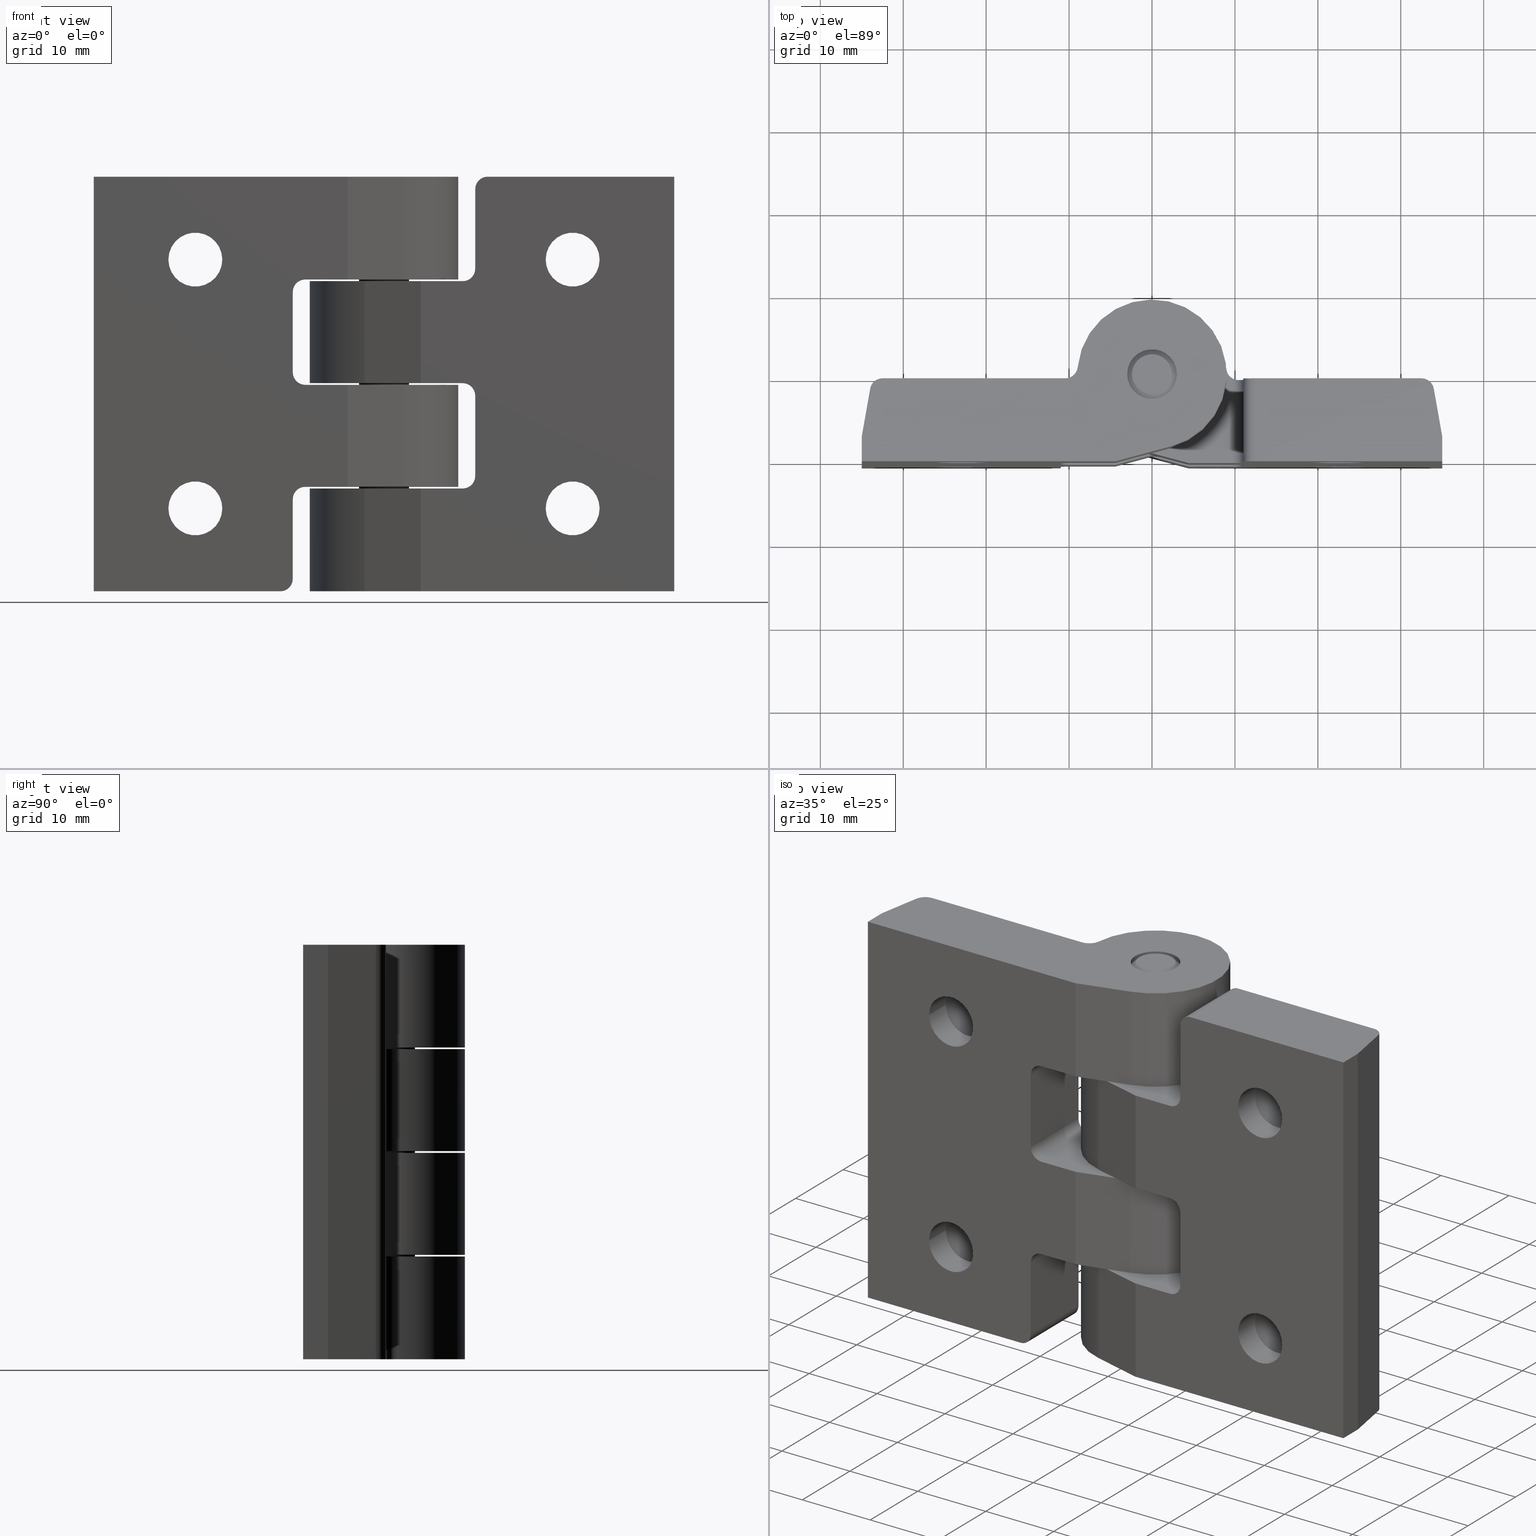
[diagram: canonical four-view strip — front | top / right | iso, engineering-drawing reading convention]
A machine part, canonical four-view strip (front | top / right | iso — engineering-drawing reading convention). The complete STEP part file that produces these views, byte-faithful:
ISO-10303-21;
HEADER;
/* Generated by software containing ST-Developer
 * from STEP Tools, Inc. (www.steptools.com) 
 */

FILE_DESCRIPTION(
/* description */ ('CERNIERA 69.5x50 NERA'),
/* implementation_level */ '2;1');

FILE_NAME(
/* name */ 
'Q:\\Catalogo\\2_Accessori Dierre\\Per Download Web e catalogo cartace
o\\CATALOGO ACCESSORI PER RIPARI\\PAGINA 66\\CCRYY0000020.stp',
/* time_stamp */ '2019-10-08T09:44:11+02:00',
/* author */ ('fzagni'),
/* organization */ (''),
/* preprocessor_version */ 'ST-DEVELOPER v17.2',
/* originating_system */ 'Autodesk Inventor 2019',
/* authorisation */ '');

FILE_SCHEMA (('AUTOMOTIVE_DESIGN { 1 0 10303 214 3 1 1 }'));
ENDSEC;

DATA;
#10=MECHANICAL_DESIGN_GEOMETRIC_PRESENTATION_REPRESENTATION('',(#29,#30),
#1245);
#11=ITEM_DEFINED_TRANSFORMATION($,$,#727,#804);
#12=ITEM_DEFINED_TRANSFORMATION($,$,#727,#805);
#13=ITEM_DEFINED_TRANSFORMATION($,$,#794,#806);
#14=(
REPRESENTATION_RELATIONSHIP($,$,#1260,#1259)
REPRESENTATION_RELATIONSHIP_WITH_TRANSFORMATION(#11)
SHAPE_REPRESENTATION_RELATIONSHIP()
);
#15=(
REPRESENTATION_RELATIONSHIP($,$,#1260,#1259)
REPRESENTATION_RELATIONSHIP_WITH_TRANSFORMATION(#12)
SHAPE_REPRESENTATION_RELATIONSHIP()
);
#16=(
REPRESENTATION_RELATIONSHIP($,$,#1261,#1259)
REPRESENTATION_RELATIONSHIP_WITH_TRANSFORMATION(#13)
SHAPE_REPRESENTATION_RELATIONSHIP()
);
#17=CONTEXT_DEPENDENT_SHAPE_REPRESENTATION(#14,#1256);
#18=CONTEXT_DEPENDENT_SHAPE_REPRESENTATION(#15,#1257);
#19=CONTEXT_DEPENDENT_SHAPE_REPRESENTATION(#16,#1258);
#20=NEXT_ASSEMBLY_USAGE_OCCURRENCE('440000013986:1','440000013986:1',
'440000013986:1',#1263,#1264,'440000013986:1');
#21=NEXT_ASSEMBLY_USAGE_OCCURRENCE('440000013986:2','440000013986:2',
'440000013986:2',#1263,#1264,'440000013986:2');
#22=NEXT_ASSEMBLY_USAGE_OCCURRENCE('440000013987:1','440000013987:1',
'440000013987:1',#1263,#1265,'440000013987:1');
#23=CONICAL_SURFACE('',#795,2.7,0.785398163397448);
#24=CONICAL_SURFACE('',#801,2.7,0.785398163397451);
#25=SHAPE_REPRESENTATION_RELATIONSHIP('SRR','None',#1260,#27);
#26=SHAPE_REPRESENTATION_RELATIONSHIP('SRR','None',#1261,#28);
#27=ADVANCED_BREP_SHAPE_REPRESENTATION('',(#31),#1243);
#28=ADVANCED_BREP_SHAPE_REPRESENTATION('',(#32),#1244);
#29=STYLED_ITEM('',(#690),#31);
#30=STYLED_ITEM('',(#691),#32);
#31=MANIFOLD_SOLID_BREP('Solid1',#665);
#32=MANIFOLD_SOLID_BREP('Solido1',#666);
#33=B_SPLINE_CURVE_WITH_KNOTS('',3,(#1087,#1088,#1089,#1090,#1091,#1092,
#1093,#1094,#1095,#1096),.UNSPECIFIED.,.F.,.F.,(4,2,2,2,4),(0.497925067169913,
0.511266978425628,0.546566432357156,0.581865886288683,0.605236241094576),
 .UNSPECIFIED.);
#34=B_SPLINE_CURVE_WITH_KNOTS('',3,(#1110,#1111,#1112,#1113,#1114,#1115,
#1116,#1117,#1118,#1119),.UNSPECIFIED.,.F.,.F.,(4,2,2,2,4),(0.13089062371033,
0.154260978516216,0.189560432447742,0.224859886379268,0.238201797634989),
 .UNSPECIFIED.);
#35=B_SPLINE_CURVE_WITH_KNOTS('',3,(#1123,#1124,#1125,#1126,#1127,#1128,
#1129,#1130,#1131,#1132),.UNSPECIFIED.,.F.,.F.,(4,2,2,2,4),(0.13089062371033,
0.154260978516216,0.189560432447742,0.224859886379268,0.238201797634988),
 .UNSPECIFIED.);
#36=LINE('',#1031,#84);
#37=LINE('',#1034,#85);
#38=LINE('',#1050,#86);
#39=LINE('',#1053,#87);
#40=LINE('',#1061,#88);
#41=LINE('',#1067,#89);
#42=LINE('',#1072,#90);
#43=LINE('',#1074,#91);
#44=LINE('',#1079,#92);
#45=LINE('',#1085,#93);
#46=LINE('',#1099,#94);
#47=LINE('',#1102,#95);
#48=LINE('',#1104,#96);
#49=LINE('',#1105,#97);
#50=LINE('',#1134,#98);
#51=LINE('',#1138,#99);
#52=LINE('',#1142,#100);
#53=LINE('',#1144,#101);
#54=LINE('',#1154,#102);
#55=LINE('',#1155,#103);
#56=LINE('',#1158,#104);
#57=LINE('',#1160,#105);
#58=LINE('',#1161,#106);
#59=LINE('',#1166,#107);
#60=LINE('',#1170,#108);
#61=LINE('',#1172,#109);
#62=LINE('',#1173,#110);
#63=LINE('',#1176,#111);
#64=LINE('',#1180,#112);
#65=LINE('',#1184,#113);
#66=LINE('',#1186,#114);
#67=LINE('',#1187,#115);
#68=LINE('',#1188,#116);
#69=LINE('',#1191,#117);
#70=LINE('',#1193,#118);
#71=LINE('',#1196,#119);
#72=LINE('',#1199,#120);
#73=LINE('',#1201,#121);
#74=LINE('',#1202,#122);
#75=LINE('',#1206,#123);
#76=LINE('',#1208,#124);
#77=LINE('',#1209,#125);
#78=LINE('',#1211,#126);
#79=LINE('',#1213,#127);
#80=LINE('',#1216,#128);
#81=LINE('',#1223,#129);
#82=LINE('',#1228,#130);
#83=LINE('',#1233,#131);
#84=VECTOR('',#825,5.);
#85=VECTOR('',#828,3.25);
#86=VECTOR('',#847,5.);
#87=VECTOR('',#850,3.25);
#88=VECTOR('',#859,3.);
#89=VECTOR('',#866,3.);
#90=VECTOR('',#871,10.);
#91=VECTOR('',#872,10.);
#92=VECTOR('',#877,10.);
#93=VECTOR('',#882,10.);
#94=VECTOR('',#885,10.);
#95=VECTOR('',#888,10.);
#96=VECTOR('',#889,10.);
#97=VECTOR('',#890,10.);
#98=VECTOR('',#899,10.);
#99=VECTOR('',#902,10.);
#100=VECTOR('',#907,10.);
#101=VECTOR('',#908,10.);
#102=VECTOR('',#919,10.);
#103=VECTOR('',#920,10.);
#104=VECTOR('',#923,10.);
#105=VECTOR('',#924,10.);
#106=VECTOR('',#925,10.);
#107=VECTOR('',#930,10.);
#108=VECTOR('',#935,10.);
#109=VECTOR('',#936,10.);
#110=VECTOR('',#937,10.);
#111=VECTOR('',#940,10.);
#112=VECTOR('',#945,10.);
#113=VECTOR('',#950,10.);
#114=VECTOR('',#951,10.);
#115=VECTOR('',#952,10.);
#116=VECTOR('',#953,10.);
#117=VECTOR('',#956,10.);
#118=VECTOR('',#957,10.);
#119=VECTOR('',#960,10.);
#120=VECTOR('',#963,10.);
#121=VECTOR('',#964,10.);
#122=VECTOR('',#965,10.);
#123=VECTOR('',#970,10.);
#124=VECTOR('',#973,10.);
#125=VECTOR('',#974,10.);
#126=VECTOR('',#977,10.);
#127=VECTOR('',#980,10.);
#128=VECTOR('',#985,10.);
#129=VECTOR('',#994,2.7);
#130=VECTOR('',#1001,3.);
#131=VECTOR('',#1008,2.7);
#132=CYLINDRICAL_SURFACE('',#732,5.);
#133=CYLINDRICAL_SURFACE('',#735,3.25);
#134=CYLINDRICAL_SURFACE('',#742,5.);
#135=CYLINDRICAL_SURFACE('',#745,3.25);
#136=CYLINDRICAL_SURFACE('',#748,3.);
#137=CYLINDRICAL_SURFACE('',#751,3.);
#138=CYLINDRICAL_SURFACE('',#757,1.4999999999997);
#139=CYLINDRICAL_SURFACE('',#761,1.49999999999939);
#140=CYLINDRICAL_SURFACE('',#764,1.49999999999939);
#141=CYLINDRICAL_SURFACE('',#774,1.49999999999939);
#142=CYLINDRICAL_SURFACE('',#778,9.);
#143=CYLINDRICAL_SURFACE('',#780,1.49997000000001);
#144=CYLINDRICAL_SURFACE('',#786,1.49996999999934);
#145=CYLINDRICAL_SURFACE('',#789,1.49997000000001);
#146=CYLINDRICAL_SURFACE('',#790,9.);
#147=CYLINDRICAL_SURFACE('',#798,3.);
#148=FACE_BOUND('',#194,.T.);
#149=FACE_BOUND('',#198,.T.);
#150=FACE_BOUND('',#204,.T.);
#151=FACE_BOUND('',#210,.T.);
#152=FACE_BOUND('',#212,.T.);
#153=FACE_BOUND('',#219,.T.);
#154=FACE_BOUND('',#220,.T.);
#155=FACE_BOUND('',#225,.T.);
#156=FACE_BOUND('',#226,.T.);
#157=FACE_BOUND('',#232,.T.);
#158=FACE_OUTER_BOUND('',#193,.T.);
#159=FACE_OUTER_BOUND('',#195,.T.);
#160=FACE_OUTER_BOUND('',#196,.T.);
#161=FACE_OUTER_BOUND('',#197,.T.);
#162=FACE_OUTER_BOUND('',#199,.T.);
#163=FACE_OUTER_BOUND('',#200,.T.);
#164=FACE_OUTER_BOUND('',#201,.T.);
#165=FACE_OUTER_BOUND('',#202,.T.);
#166=FACE_OUTER_BOUND('',#203,.T.);
#167=FACE_OUTER_BOUND('',#205,.T.);
#168=FACE_OUTER_BOUND('',#206,.T.);
#169=FACE_OUTER_BOUND('',#207,.T.);
#170=FACE_OUTER_BOUND('',#208,.T.);
#171=FACE_OUTER_BOUND('',#209,.T.);
#172=FACE_OUTER_BOUND('',#211,.T.);
#173=FACE_OUTER_BOUND('',#213,.T.);
#174=FACE_OUTER_BOUND('',#214,.T.);
#175=FACE_OUTER_BOUND('',#215,.T.);
#176=FACE_OUTER_BOUND('',#216,.T.);
#177=FACE_OUTER_BOUND('',#217,.T.);
#178=FACE_OUTER_BOUND('',#218,.T.);
#179=FACE_OUTER_BOUND('',#221,.T.);
#180=FACE_OUTER_BOUND('',#222,.T.);
#181=FACE_OUTER_BOUND('',#223,.T.);
#182=FACE_OUTER_BOUND('',#224,.T.);
#183=FACE_OUTER_BOUND('',#227,.T.);
#184=FACE_OUTER_BOUND('',#228,.T.);
#185=FACE_OUTER_BOUND('',#229,.T.);
#186=FACE_OUTER_BOUND('',#230,.T.);
#187=FACE_OUTER_BOUND('',#231,.T.);
#188=FACE_OUTER_BOUND('',#233,.T.);
#189=FACE_OUTER_BOUND('',#234,.T.);
#190=FACE_OUTER_BOUND('',#235,.T.);
#191=FACE_OUTER_BOUND('',#236,.T.);
#192=FACE_OUTER_BOUND('',#237,.T.);
#193=EDGE_LOOP('',(#431,#432));
#194=EDGE_LOOP('',(#433));
#195=EDGE_LOOP('',(#434,#435,#436,#437,#438,#439));
#196=EDGE_LOOP('',(#440,#441,#442,#443,#444));
#197=EDGE_LOOP('',(#445,#446));
#198=EDGE_LOOP('',(#447));
#199=EDGE_LOOP('',(#448,#449,#450,#451,#452,#453));
#200=EDGE_LOOP('',(#454,#455,#456,#457,#458));
#201=EDGE_LOOP('',(#459,#460,#461,#462));
#202=EDGE_LOOP('',(#463,#464,#465,#466));
#203=EDGE_LOOP('',(#467,#468,#469,#470,#471));
#204=EDGE_LOOP('',(#472));
#205=EDGE_LOOP('',(#473,#474,#475,#476,#477));
#206=EDGE_LOOP('',(#478,#479,#480,#481));
#207=EDGE_LOOP('',(#482,#483,#484,#485,#486));
#208=EDGE_LOOP('',(#487,#488,#489,#490,#491));
#209=EDGE_LOOP('',(#492,#493,#494,#495,#496));
#210=EDGE_LOOP('',(#497));
#211=EDGE_LOOP('',(#498,#499,#500,#501,#502));
#212=EDGE_LOOP('',(#503));
#213=EDGE_LOOP('',(#504,#505,#506,#507));
#214=EDGE_LOOP('',(#508,#509,#510,#511));
#215=EDGE_LOOP('',(#512,#513,#514,#515));
#216=EDGE_LOOP('',(#516,#517,#518,#519));
#217=EDGE_LOOP('',(#520,#521,#522,#523,#524));
#218=EDGE_LOOP('',(#525,#526,#527,#528,#529,#530,#531,#532,#533,#534,#535,
#536,#537,#538));
#219=EDGE_LOOP('',(#539,#540));
#220=EDGE_LOOP('',(#541,#542));
#221=EDGE_LOOP('',(#543,#544,#545,#546,#547,#548));
#222=EDGE_LOOP('',(#549,#550,#551,#552));
#223=EDGE_LOOP('',(#553,#554,#555,#556));
#224=EDGE_LOOP('',(#557,#558,#559,#560,#561,#562,#563,#564,#565,#566,#567));
#225=EDGE_LOOP('',(#568,#569));
#226=EDGE_LOOP('',(#570,#571));
#227=EDGE_LOOP('',(#572,#573,#574,#575,#576,#577));
#228=EDGE_LOOP('',(#578,#579,#580,#581));
#229=EDGE_LOOP('',(#582,#583,#584,#585));
#230=EDGE_LOOP('',(#586,#587,#588,#589));
#231=EDGE_LOOP('',(#590,#591,#592,#593,#594,#595,#596,#597));
#232=EDGE_LOOP('',(#598));
#233=EDGE_LOOP('',(#599,#600,#601,#602));
#234=EDGE_LOOP('',(#603,#604,#605,#606));
#235=EDGE_LOOP('',(#607));
#236=EDGE_LOOP('',(#608,#609,#610,#611));
#237=EDGE_LOOP('',(#612));
#238=CIRCLE('',#729,5.);
#239=CIRCLE('',#730,5.);
#240=CIRCLE('',#731,3.25);
#241=CIRCLE('',#733,5.);
#242=CIRCLE('',#734,5.);
#243=CIRCLE('',#736,3.25);
#244=CIRCLE('',#737,3.25);
#245=CIRCLE('',#739,5.);
#246=CIRCLE('',#740,5.);
#247=CIRCLE('',#741,3.25);
#248=CIRCLE('',#743,5.);
#249=CIRCLE('',#744,5.);
#250=CIRCLE('',#746,3.25);
#251=CIRCLE('',#747,3.25);
#252=CIRCLE('',#749,3.);
#253=CIRCLE('',#750,3.);
#254=CIRCLE('',#752,3.);
#255=CIRCLE('',#753,3.);
#256=CIRCLE('',#755,1.49997000000001);
#257=CIRCLE('',#756,9.);
#258=CIRCLE('',#758,1.4999999999997);
#259=CIRCLE('',#759,1.4999999999997);
#260=CIRCLE('',#762,1.49999999999939);
#261=CIRCLE('',#763,1.49999999999939);
#262=CIRCLE('',#765,1.49999999999939);
#263=CIRCLE('',#766,1.49999999999939);
#264=CIRCLE('',#768,9.);
#265=CIRCLE('',#769,1.49997000000001);
#266=CIRCLE('',#771,1.49997000000001);
#267=CIRCLE('',#772,9.);
#268=CIRCLE('',#775,1.49999999999939);
#269=CIRCLE('',#776,1.49999999999939);
#270=CIRCLE('',#779,9.);
#271=CIRCLE('',#781,1.49997000000001);
#272=CIRCLE('',#784,1.49996999999934);
#273=CIRCLE('',#787,1.49996999999934);
#274=CIRCLE('',#796,2.4);
#275=CIRCLE('',#797,3.);
#276=CIRCLE('',#799,3.);
#277=CIRCLE('',#802,2.4);
#278=VERTEX_POINT('',#1020);
#279=VERTEX_POINT('',#1021);
#280=VERTEX_POINT('',#1024);
#281=VERTEX_POINT('',#1027);
#282=VERTEX_POINT('',#1028);
#283=VERTEX_POINT('',#1033);
#284=VERTEX_POINT('',#1035);
#285=VERTEX_POINT('',#1039);
#286=VERTEX_POINT('',#1040);
#287=VERTEX_POINT('',#1043);
#288=VERTEX_POINT('',#1046);
#289=VERTEX_POINT('',#1047);
#290=VERTEX_POINT('',#1052);
#291=VERTEX_POINT('',#1054);
#292=VERTEX_POINT('',#1058);
#293=VERTEX_POINT('',#1060);
#294=VERTEX_POINT('',#1064);
#295=VERTEX_POINT('',#1066);
#296=VERTEX_POINT('',#1070);
#297=VERTEX_POINT('',#1071);
#298=VERTEX_POINT('',#1073);
#299=VERTEX_POINT('',#1075);
#300=VERTEX_POINT('',#1077);
#301=VERTEX_POINT('',#1081);
#302=VERTEX_POINT('',#1082);
#303=VERTEX_POINT('',#1084);
#304=VERTEX_POINT('',#1086);
#305=VERTEX_POINT('',#1097);
#306=VERTEX_POINT('',#1101);
#307=VERTEX_POINT('',#1103);
#308=VERTEX_POINT('',#1108);
#309=VERTEX_POINT('',#1121);
#310=VERTEX_POINT('',#1122);
#311=VERTEX_POINT('',#1133);
#312=VERTEX_POINT('',#1135);
#313=VERTEX_POINT('',#1137);
#314=VERTEX_POINT('',#1141);
#315=VERTEX_POINT('',#1143);
#316=VERTEX_POINT('',#1145);
#317=VERTEX_POINT('',#1149);
#318=VERTEX_POINT('',#1151);
#319=VERTEX_POINT('',#1153);
#320=VERTEX_POINT('',#1157);
#321=VERTEX_POINT('',#1159);
#322=VERTEX_POINT('',#1163);
#323=VERTEX_POINT('',#1165);
#324=VERTEX_POINT('',#1169);
#325=VERTEX_POINT('',#1171);
#326=VERTEX_POINT('',#1175);
#327=VERTEX_POINT('',#1179);
#328=VERTEX_POINT('',#1183);
#329=VERTEX_POINT('',#1185);
#330=VERTEX_POINT('',#1190);
#331=VERTEX_POINT('',#1192);
#332=VERTEX_POINT('',#1194);
#333=VERTEX_POINT('',#1198);
#334=VERTEX_POINT('',#1200);
#335=VERTEX_POINT('',#1204);
#336=VERTEX_POINT('',#1220);
#337=VERTEX_POINT('',#1222);
#338=VERTEX_POINT('',#1226);
#339=VERTEX_POINT('',#1231);
#340=EDGE_CURVE('',#278,#279,#238,.T.);
#341=EDGE_CURVE('',#279,#278,#239,.T.);
#342=EDGE_CURVE('',#280,#280,#240,.T.);
#343=EDGE_CURVE('',#281,#282,#241,.T.);
#344=EDGE_CURVE('',#282,#281,#242,.T.);
#345=EDGE_CURVE('',#282,#279,#36,.T.);
#346=EDGE_CURVE('',#280,#283,#37,.T.);
#347=EDGE_CURVE('',#284,#283,#243,.T.);
#348=EDGE_CURVE('',#283,#284,#244,.T.);
#349=EDGE_CURVE('',#285,#286,#245,.T.);
#350=EDGE_CURVE('',#286,#285,#246,.T.);
#351=EDGE_CURVE('',#287,#287,#247,.T.);
#352=EDGE_CURVE('',#288,#289,#248,.T.);
#353=EDGE_CURVE('',#289,#288,#249,.T.);
#354=EDGE_CURVE('',#289,#286,#38,.T.);
#355=EDGE_CURVE('',#287,#290,#39,.T.);
#356=EDGE_CURVE('',#291,#290,#250,.T.);
#357=EDGE_CURVE('',#290,#291,#251,.T.);
#358=EDGE_CURVE('',#292,#292,#252,.T.);
#359=EDGE_CURVE('',#292,#293,#40,.T.);
#360=EDGE_CURVE('',#293,#293,#253,.T.);
#361=EDGE_CURVE('',#294,#294,#254,.T.);
#362=EDGE_CURVE('',#294,#295,#41,.T.);
#363=EDGE_CURVE('',#295,#295,#255,.T.);
#364=EDGE_CURVE('',#296,#297,#42,.T.);
#365=EDGE_CURVE('',#296,#298,#43,.T.);
#366=EDGE_CURVE('',#299,#298,#256,.T.);
#367=EDGE_CURVE('',#300,#299,#257,.T.);
#368=EDGE_CURVE('',#297,#300,#44,.T.);
#369=EDGE_CURVE('',#301,#302,#258,.T.);
#370=EDGE_CURVE('',#301,#303,#45,.T.);
#371=EDGE_CURVE('',#304,#303,#33,.T.);
#372=EDGE_CURVE('',#305,#304,#259,.T.);
#373=EDGE_CURVE('',#302,#305,#46,.T.);
#374=EDGE_CURVE('',#302,#306,#47,.T.);
#375=EDGE_CURVE('',#307,#305,#48,.T.);
#376=EDGE_CURVE('',#306,#307,#49,.T.);
#377=EDGE_CURVE('',#306,#296,#260,.T.);
#378=EDGE_CURVE('',#308,#307,#261,.T.);
#379=EDGE_CURVE('',#298,#308,#34,.T.);
#380=EDGE_CURVE('',#309,#310,#35,.T.);
#381=EDGE_CURVE('',#311,#309,#50,.T.);
#382=EDGE_CURVE('',#312,#311,#262,.T.);
#383=EDGE_CURVE('',#312,#313,#51,.T.);
#384=EDGE_CURVE('',#310,#313,#263,.T.);
#385=EDGE_CURVE('',#314,#301,#52,.T.);
#386=EDGE_CURVE('',#315,#314,#53,.T.);
#387=EDGE_CURVE('',#316,#315,#264,.T.);
#388=EDGE_CURVE('',#303,#316,#265,.T.);
#389=EDGE_CURVE('',#317,#309,#266,.T.);
#390=EDGE_CURVE('',#318,#317,#267,.T.);
#391=EDGE_CURVE('',#319,#318,#54,.T.);
#392=EDGE_CURVE('',#311,#319,#55,.T.);
#393=EDGE_CURVE('',#320,#312,#56,.T.);
#394=EDGE_CURVE('',#320,#321,#57,.T.);
#395=EDGE_CURVE('',#313,#321,#58,.T.);
#396=EDGE_CURVE('',#322,#320,#268,.T.);
#397=EDGE_CURVE('',#323,#322,#59,.T.);
#398=EDGE_CURVE('',#321,#323,#269,.T.);
#399=EDGE_CURVE('',#300,#324,#60,.T.);
#400=EDGE_CURVE('',#325,#324,#61,.T.);
#401=EDGE_CURVE('',#297,#325,#62,.T.);
#402=EDGE_CURVE('',#299,#326,#63,.T.);
#403=EDGE_CURVE('',#324,#326,#270,.T.);
#404=EDGE_CURVE('',#308,#327,#64,.T.);
#405=EDGE_CURVE('',#326,#327,#271,.T.);
#406=EDGE_CURVE('',#328,#325,#65,.T.);
#407=EDGE_CURVE('',#329,#328,#66,.T.);
#408=EDGE_CURVE('',#322,#329,#67,.T.);
#409=EDGE_CURVE('',#319,#314,#68,.T.);
#410=EDGE_CURVE('',#329,#330,#69,.T.);
#411=EDGE_CURVE('',#330,#331,#70,.T.);
#412=EDGE_CURVE('',#331,#332,#272,.T.);
#413=EDGE_CURVE('',#332,#323,#71,.T.);
#414=EDGE_CURVE('',#333,#330,#72,.T.);
#415=EDGE_CURVE('',#334,#333,#73,.T.);
#416=EDGE_CURVE('',#331,#334,#74,.T.);
#417=EDGE_CURVE('',#335,#334,#273,.T.);
#418=EDGE_CURVE('',#332,#335,#75,.T.);
#419=EDGE_CURVE('',#310,#304,#76,.T.);
#420=EDGE_CURVE('',#327,#335,#77,.T.);
#421=EDGE_CURVE('',#317,#316,#78,.T.);
#422=EDGE_CURVE('',#318,#315,#79,.T.);
#423=EDGE_CURVE('',#333,#328,#80,.T.);
#424=EDGE_CURVE('',#336,#336,#274,.T.);
#425=EDGE_CURVE('',#336,#337,#81,.T.);
#426=EDGE_CURVE('',#337,#337,#275,.T.);
#427=EDGE_CURVE('',#338,#338,#276,.T.);
#428=EDGE_CURVE('',#338,#337,#82,.T.);
#429=EDGE_CURVE('',#339,#339,#277,.T.);
#430=EDGE_CURVE('',#339,#338,#83,.T.);
#431=ORIENTED_EDGE('',*,*,#340,.T.);
#432=ORIENTED_EDGE('',*,*,#341,.T.);
#433=ORIENTED_EDGE('',*,*,#342,.F.);
#434=ORIENTED_EDGE('',*,*,#343,.F.);
#435=ORIENTED_EDGE('',*,*,#344,.F.);
#436=ORIENTED_EDGE('',*,*,#345,.T.);
#437=ORIENTED_EDGE('',*,*,#340,.F.);
#438=ORIENTED_EDGE('',*,*,#341,.F.);
#439=ORIENTED_EDGE('',*,*,#345,.F.);
#440=ORIENTED_EDGE('',*,*,#342,.T.);
#441=ORIENTED_EDGE('',*,*,#346,.T.);
#442=ORIENTED_EDGE('',*,*,#347,.F.);
#443=ORIENTED_EDGE('',*,*,#348,.F.);
#444=ORIENTED_EDGE('',*,*,#346,.F.);
#445=ORIENTED_EDGE('',*,*,#349,.T.);
#446=ORIENTED_EDGE('',*,*,#350,.T.);
#447=ORIENTED_EDGE('',*,*,#351,.F.);
#448=ORIENTED_EDGE('',*,*,#352,.F.);
#449=ORIENTED_EDGE('',*,*,#353,.F.);
#450=ORIENTED_EDGE('',*,*,#354,.T.);
#451=ORIENTED_EDGE('',*,*,#349,.F.);
#452=ORIENTED_EDGE('',*,*,#350,.F.);
#453=ORIENTED_EDGE('',*,*,#354,.F.);
#454=ORIENTED_EDGE('',*,*,#351,.T.);
#455=ORIENTED_EDGE('',*,*,#355,.T.);
#456=ORIENTED_EDGE('',*,*,#356,.F.);
#457=ORIENTED_EDGE('',*,*,#357,.F.);
#458=ORIENTED_EDGE('',*,*,#355,.F.);
#459=ORIENTED_EDGE('',*,*,#358,.F.);
#460=ORIENTED_EDGE('',*,*,#359,.T.);
#461=ORIENTED_EDGE('',*,*,#360,.F.);
#462=ORIENTED_EDGE('',*,*,#359,.F.);
#463=ORIENTED_EDGE('',*,*,#361,.F.);
#464=ORIENTED_EDGE('',*,*,#362,.T.);
#465=ORIENTED_EDGE('',*,*,#363,.F.);
#466=ORIENTED_EDGE('',*,*,#362,.F.);
#467=ORIENTED_EDGE('',*,*,#364,.F.);
#468=ORIENTED_EDGE('',*,*,#365,.T.);
#469=ORIENTED_EDGE('',*,*,#366,.F.);
#470=ORIENTED_EDGE('',*,*,#367,.F.);
#471=ORIENTED_EDGE('',*,*,#368,.F.);
#472=ORIENTED_EDGE('',*,*,#361,.T.);
#473=ORIENTED_EDGE('',*,*,#369,.F.);
#474=ORIENTED_EDGE('',*,*,#370,.T.);
#475=ORIENTED_EDGE('',*,*,#371,.F.);
#476=ORIENTED_EDGE('',*,*,#372,.F.);
#477=ORIENTED_EDGE('',*,*,#373,.F.);
#478=ORIENTED_EDGE('',*,*,#374,.F.);
#479=ORIENTED_EDGE('',*,*,#373,.T.);
#480=ORIENTED_EDGE('',*,*,#375,.F.);
#481=ORIENTED_EDGE('',*,*,#376,.F.);
#482=ORIENTED_EDGE('',*,*,#377,.F.);
#483=ORIENTED_EDGE('',*,*,#376,.T.);
#484=ORIENTED_EDGE('',*,*,#378,.F.);
#485=ORIENTED_EDGE('',*,*,#379,.F.);
#486=ORIENTED_EDGE('',*,*,#365,.F.);
#487=ORIENTED_EDGE('',*,*,#380,.F.);
#488=ORIENTED_EDGE('',*,*,#381,.F.);
#489=ORIENTED_EDGE('',*,*,#382,.F.);
#490=ORIENTED_EDGE('',*,*,#383,.T.);
#491=ORIENTED_EDGE('',*,*,#384,.F.);
#492=ORIENTED_EDGE('',*,*,#385,.F.);
#493=ORIENTED_EDGE('',*,*,#386,.F.);
#494=ORIENTED_EDGE('',*,*,#387,.F.);
#495=ORIENTED_EDGE('',*,*,#388,.F.);
#496=ORIENTED_EDGE('',*,*,#370,.F.);
#497=ORIENTED_EDGE('',*,*,#360,.T.);
#498=ORIENTED_EDGE('',*,*,#389,.F.);
#499=ORIENTED_EDGE('',*,*,#390,.F.);
#500=ORIENTED_EDGE('',*,*,#391,.F.);
#501=ORIENTED_EDGE('',*,*,#392,.F.);
#502=ORIENTED_EDGE('',*,*,#381,.T.);
#503=ORIENTED_EDGE('',*,*,#358,.T.);
#504=ORIENTED_EDGE('',*,*,#393,.F.);
#505=ORIENTED_EDGE('',*,*,#394,.T.);
#506=ORIENTED_EDGE('',*,*,#395,.F.);
#507=ORIENTED_EDGE('',*,*,#383,.F.);
#508=ORIENTED_EDGE('',*,*,#396,.F.);
#509=ORIENTED_EDGE('',*,*,#397,.F.);
#510=ORIENTED_EDGE('',*,*,#398,.F.);
#511=ORIENTED_EDGE('',*,*,#394,.F.);
#512=ORIENTED_EDGE('',*,*,#368,.T.);
#513=ORIENTED_EDGE('',*,*,#399,.T.);
#514=ORIENTED_EDGE('',*,*,#400,.F.);
#515=ORIENTED_EDGE('',*,*,#401,.F.);
#516=ORIENTED_EDGE('',*,*,#367,.T.);
#517=ORIENTED_EDGE('',*,*,#402,.T.);
#518=ORIENTED_EDGE('',*,*,#403,.F.);
#519=ORIENTED_EDGE('',*,*,#399,.F.);
#520=ORIENTED_EDGE('',*,*,#366,.T.);
#521=ORIENTED_EDGE('',*,*,#379,.T.);
#522=ORIENTED_EDGE('',*,*,#404,.T.);
#523=ORIENTED_EDGE('',*,*,#405,.F.);
#524=ORIENTED_EDGE('',*,*,#402,.F.);
#525=ORIENTED_EDGE('',*,*,#385,.T.);
#526=ORIENTED_EDGE('',*,*,#369,.T.);
#527=ORIENTED_EDGE('',*,*,#374,.T.);
#528=ORIENTED_EDGE('',*,*,#377,.T.);
#529=ORIENTED_EDGE('',*,*,#364,.T.);
#530=ORIENTED_EDGE('',*,*,#401,.T.);
#531=ORIENTED_EDGE('',*,*,#406,.F.);
#532=ORIENTED_EDGE('',*,*,#407,.F.);
#533=ORIENTED_EDGE('',*,*,#408,.F.);
#534=ORIENTED_EDGE('',*,*,#396,.T.);
#535=ORIENTED_EDGE('',*,*,#393,.T.);
#536=ORIENTED_EDGE('',*,*,#382,.T.);
#537=ORIENTED_EDGE('',*,*,#392,.T.);
#538=ORIENTED_EDGE('',*,*,#409,.T.);
#539=ORIENTED_EDGE('',*,*,#347,.T.);
#540=ORIENTED_EDGE('',*,*,#348,.T.);
#541=ORIENTED_EDGE('',*,*,#356,.T.);
#542=ORIENTED_EDGE('',*,*,#357,.T.);
#543=ORIENTED_EDGE('',*,*,#397,.T.);
#544=ORIENTED_EDGE('',*,*,#408,.T.);
#545=ORIENTED_EDGE('',*,*,#410,.T.);
#546=ORIENTED_EDGE('',*,*,#411,.T.);
#547=ORIENTED_EDGE('',*,*,#412,.T.);
#548=ORIENTED_EDGE('',*,*,#413,.T.);
#549=ORIENTED_EDGE('',*,*,#414,.F.);
#550=ORIENTED_EDGE('',*,*,#415,.F.);
#551=ORIENTED_EDGE('',*,*,#416,.F.);
#552=ORIENTED_EDGE('',*,*,#411,.F.);
#553=ORIENTED_EDGE('',*,*,#416,.T.);
#554=ORIENTED_EDGE('',*,*,#417,.F.);
#555=ORIENTED_EDGE('',*,*,#418,.F.);
#556=ORIENTED_EDGE('',*,*,#412,.F.);
#557=ORIENTED_EDGE('',*,*,#372,.T.);
#558=ORIENTED_EDGE('',*,*,#419,.F.);
#559=ORIENTED_EDGE('',*,*,#384,.T.);
#560=ORIENTED_EDGE('',*,*,#395,.T.);
#561=ORIENTED_EDGE('',*,*,#398,.T.);
#562=ORIENTED_EDGE('',*,*,#413,.F.);
#563=ORIENTED_EDGE('',*,*,#418,.T.);
#564=ORIENTED_EDGE('',*,*,#420,.F.);
#565=ORIENTED_EDGE('',*,*,#404,.F.);
#566=ORIENTED_EDGE('',*,*,#378,.T.);
#567=ORIENTED_EDGE('',*,*,#375,.T.);
#568=ORIENTED_EDGE('',*,*,#343,.T.);
#569=ORIENTED_EDGE('',*,*,#344,.T.);
#570=ORIENTED_EDGE('',*,*,#352,.T.);
#571=ORIENTED_EDGE('',*,*,#353,.T.);
#572=ORIENTED_EDGE('',*,*,#388,.T.);
#573=ORIENTED_EDGE('',*,*,#421,.F.);
#574=ORIENTED_EDGE('',*,*,#389,.T.);
#575=ORIENTED_EDGE('',*,*,#380,.T.);
#576=ORIENTED_EDGE('',*,*,#419,.T.);
#577=ORIENTED_EDGE('',*,*,#371,.T.);
#578=ORIENTED_EDGE('',*,*,#387,.T.);
#579=ORIENTED_EDGE('',*,*,#422,.F.);
#580=ORIENTED_EDGE('',*,*,#390,.T.);
#581=ORIENTED_EDGE('',*,*,#421,.T.);
#582=ORIENTED_EDGE('',*,*,#386,.T.);
#583=ORIENTED_EDGE('',*,*,#409,.F.);
#584=ORIENTED_EDGE('',*,*,#391,.T.);
#585=ORIENTED_EDGE('',*,*,#422,.T.);
#586=ORIENTED_EDGE('',*,*,#407,.T.);
#587=ORIENTED_EDGE('',*,*,#423,.F.);
#588=ORIENTED_EDGE('',*,*,#414,.T.);
#589=ORIENTED_EDGE('',*,*,#410,.F.);
#590=ORIENTED_EDGE('',*,*,#423,.T.);
#591=ORIENTED_EDGE('',*,*,#406,.T.);
#592=ORIENTED_EDGE('',*,*,#400,.T.);
#593=ORIENTED_EDGE('',*,*,#403,.T.);
#594=ORIENTED_EDGE('',*,*,#405,.T.);
#595=ORIENTED_EDGE('',*,*,#420,.T.);
#596=ORIENTED_EDGE('',*,*,#417,.T.);
#597=ORIENTED_EDGE('',*,*,#415,.T.);
#598=ORIENTED_EDGE('',*,*,#363,.T.);
#599=ORIENTED_EDGE('',*,*,#424,.T.);
#600=ORIENTED_EDGE('',*,*,#425,.T.);
#601=ORIENTED_EDGE('',*,*,#426,.T.);
#602=ORIENTED_EDGE('',*,*,#425,.F.);
#603=ORIENTED_EDGE('',*,*,#427,.F.);
#604=ORIENTED_EDGE('',*,*,#428,.T.);
#605=ORIENTED_EDGE('',*,*,#426,.F.);
#606=ORIENTED_EDGE('',*,*,#428,.F.);
#607=ORIENTED_EDGE('',*,*,#424,.F.);
#608=ORIENTED_EDGE('',*,*,#429,.T.);
#609=ORIENTED_EDGE('',*,*,#430,.T.);
#610=ORIENTED_EDGE('',*,*,#427,.T.);
#611=ORIENTED_EDGE('',*,*,#430,.F.);
#612=ORIENTED_EDGE('',*,*,#429,.F.);
#613=PLANE('',#728);
#614=PLANE('',#738);
#615=PLANE('',#754);
#616=PLANE('',#760);
#617=PLANE('',#767);
#618=PLANE('',#770);
#619=PLANE('',#773);
#620=PLANE('',#777);
#621=PLANE('',#782);
#622=PLANE('',#783);
#623=PLANE('',#785);
#624=PLANE('',#788);
#625=PLANE('',#791);
#626=PLANE('',#792);
#627=PLANE('',#793);
#628=PLANE('',#800);
#629=PLANE('',#803);
#630=ADVANCED_FACE('',(#158,#148),#613,.T.);
#631=ADVANCED_FACE('',(#159),#132,.F.);
#632=ADVANCED_FACE('',(#160),#133,.F.);
#633=ADVANCED_FACE('',(#161,#149),#614,.T.);
#634=ADVANCED_FACE('',(#162),#134,.F.);
#635=ADVANCED_FACE('',(#163),#135,.F.);
#636=ADVANCED_FACE('',(#164),#136,.F.);
#637=ADVANCED_FACE('',(#165),#137,.F.);
#638=ADVANCED_FACE('',(#166,#150),#615,.F.);
#639=ADVANCED_FACE('',(#167),#138,.F.);
#640=ADVANCED_FACE('',(#168),#616,.F.);
#641=ADVANCED_FACE('',(#169),#139,.F.);
#642=ADVANCED_FACE('',(#170),#140,.F.);
#643=ADVANCED_FACE('',(#171,#151),#617,.F.);
#644=ADVANCED_FACE('',(#172,#152),#618,.F.);
#645=ADVANCED_FACE('',(#173),#619,.F.);
#646=ADVANCED_FACE('',(#174),#141,.T.);
#647=ADVANCED_FACE('',(#175),#620,.T.);
#648=ADVANCED_FACE('',(#176),#142,.T.);
#649=ADVANCED_FACE('',(#177),#143,.F.);
#650=ADVANCED_FACE('',(#178,#153,#154),#621,.T.);
#651=ADVANCED_FACE('',(#179),#622,.F.);
#652=ADVANCED_FACE('',(#180),#623,.T.);
#653=ADVANCED_FACE('',(#181),#144,.T.);
#654=ADVANCED_FACE('',(#182,#155,#156),#624,.T.);
#655=ADVANCED_FACE('',(#183),#145,.F.);
#656=ADVANCED_FACE('',(#184),#146,.T.);
#657=ADVANCED_FACE('',(#185),#625,.T.);
#658=ADVANCED_FACE('',(#186),#626,.T.);
#659=ADVANCED_FACE('',(#187,#157),#627,.T.);
#660=ADVANCED_FACE('',(#188),#23,.T.);
#661=ADVANCED_FACE('',(#189),#147,.T.);
#662=ADVANCED_FACE('',(#190),#628,.F.);
#663=ADVANCED_FACE('',(#191),#24,.T.);
#664=ADVANCED_FACE('',(#192),#629,.T.);
#665=CLOSED_SHELL('',(#630,#631,#632,#633,#634,#635,#636,#637,#638,#639,
#640,#641,#642,#643,#644,#645,#646,#647,#648,#649,#650,#651,#652,#653,#654,
#655,#656,#657,#658,#659));
#666=CLOSED_SHELL('',(#660,#661,#662,#663,#664));
#667=DERIVED_UNIT_ELEMENT(#671,1.);
#668=DERIVED_UNIT_ELEMENT(#1247,3.);
#669=DERIVED_UNIT_ELEMENT(#671,1.);
#670=DERIVED_UNIT_ELEMENT(#1247,3.);
#671=(
MASS_UNIT()
NAMED_UNIT(*)
SI_UNIT($,.GRAM.)
);
#672=DERIVED_UNIT((#667,#668));
#673=DERIVED_UNIT((#669,#670));
#674=MEASURE_REPRESENTATION_ITEM('density measure',
POSITIVE_RATIO_MEASURE(1.13),#672);
#675=MEASURE_REPRESENTATION_ITEM('density measure',
POSITIVE_RATIO_MEASURE(8.08),#673);
#676=PROPERTY_DEFINITION_REPRESENTATION(#686,#680);
#677=PROPERTY_DEFINITION_REPRESENTATION(#687,#681);
#678=PROPERTY_DEFINITION_REPRESENTATION(#688,#682);
#679=PROPERTY_DEFINITION_REPRESENTATION(#689,#683);
#680=REPRESENTATION('material name',(#684),#1243);
#681=REPRESENTATION('density',(#674),#1243);
#682=REPRESENTATION('material name',(#685),#1244);
#683=REPRESENTATION('density',(#675),#1244);
#684=DESCRIPTIVE_REPRESENTATION_ITEM('NYLON','NYLON');
#685=DESCRIPTIVE_REPRESENTATION_ITEM('Acciaio Inox AISI304',
'Acciaio Inox AISI304');
#686=PROPERTY_DEFINITION('material property','material name',#1264);
#687=PROPERTY_DEFINITION('material property','density of part',#1264);
#688=PROPERTY_DEFINITION('material property','material name',#1265);
#689=PROPERTY_DEFINITION('material property','density of part',#1265);
#690=PRESENTATION_STYLE_ASSIGNMENT((#692));
#691=PRESENTATION_STYLE_ASSIGNMENT((#693));
#692=SURFACE_STYLE_USAGE(.BOTH.,#698);
#693=SURFACE_STYLE_USAGE(.BOTH.,#699);
#694=SURFACE_STYLE_RENDERING_WITH_PROPERTIES($,#706,(#696));
#695=SURFACE_STYLE_RENDERING_WITH_PROPERTIES($,#707,(#697));
#696=SURFACE_STYLE_TRANSPARENT(0.);
#697=SURFACE_STYLE_TRANSPARENT(0.);
#698=SURFACE_SIDE_STYLE('',(#700,#694));
#699=SURFACE_SIDE_STYLE('',(#701,#695));
#700=SURFACE_STYLE_FILL_AREA(#702);
#701=SURFACE_STYLE_FILL_AREA(#703);
#702=FILL_AREA_STYLE('',(#704));
#703=FILL_AREA_STYLE('',(#705));
#704=FILL_AREA_STYLE_COLOUR('',#706);
#705=FILL_AREA_STYLE_COLOUR('',#707);
#706=COLOUR_RGB('',0.16078431372549,0.16078431372549,0.16078431372549);
#707=COLOUR_RGB('',0.745098039215686,0.737254901960784,0.729411764705882);
#708=DATE_TIME_ROLE('creation_date');
#709=DATE_TIME_ROLE('creation_date');
#710=DATE_TIME_ROLE('creation_date');
#711=APPLIED_DATE_AND_TIME_ASSIGNMENT(#714,#708,(#1263));
#712=APPLIED_DATE_AND_TIME_ASSIGNMENT(#715,#709,(#1264));
#713=APPLIED_DATE_AND_TIME_ASSIGNMENT(#716,#710,(#1265));
#714=DATE_AND_TIME(#717,#720);
#715=DATE_AND_TIME(#718,#721);
#716=DATE_AND_TIME(#719,#722);
#717=CALENDAR_DATE(2019,2,10);
#718=CALENDAR_DATE(2019,2,10);
#719=CALENDAR_DATE(2019,2,10);
#720=LOCAL_TIME(17,3,6.,#723);
#721=LOCAL_TIME(12,34,23.,#724);
#722=LOCAL_TIME(17,8,3.,#725);
#723=COORDINATED_UNIVERSAL_TIME_OFFSET(0,0,.BEHIND.);
#724=COORDINATED_UNIVERSAL_TIME_OFFSET(0,0,.BEHIND.);
#725=COORDINATED_UNIVERSAL_TIME_OFFSET(0,0,.BEHIND.);
#726=AXIS2_PLACEMENT_3D('placement',#1017,#807,#808);
#727=AXIS2_PLACEMENT_3D('placement',#1018,#809,#810);
#728=AXIS2_PLACEMENT_3D('',#1019,#811,#812);
#729=AXIS2_PLACEMENT_3D('',#1022,#813,#814);
#730=AXIS2_PLACEMENT_3D('',#1023,#815,#816);
#731=AXIS2_PLACEMENT_3D('',#1025,#817,#818);
#732=AXIS2_PLACEMENT_3D('',#1026,#819,#820);
#733=AXIS2_PLACEMENT_3D('',#1029,#821,#822);
#734=AXIS2_PLACEMENT_3D('',#1030,#823,#824);
#735=AXIS2_PLACEMENT_3D('',#1032,#826,#827);
#736=AXIS2_PLACEMENT_3D('',#1036,#829,#830);
#737=AXIS2_PLACEMENT_3D('',#1037,#831,#832);
#738=AXIS2_PLACEMENT_3D('',#1038,#833,#834);
#739=AXIS2_PLACEMENT_3D('',#1041,#835,#836);
#740=AXIS2_PLACEMENT_3D('',#1042,#837,#838);
#741=AXIS2_PLACEMENT_3D('',#1044,#839,#840);
#742=AXIS2_PLACEMENT_3D('',#1045,#841,#842);
#743=AXIS2_PLACEMENT_3D('',#1048,#843,#844);
#744=AXIS2_PLACEMENT_3D('',#1049,#845,#846);
#745=AXIS2_PLACEMENT_3D('',#1051,#848,#849);
#746=AXIS2_PLACEMENT_3D('',#1055,#851,#852);
#747=AXIS2_PLACEMENT_3D('',#1056,#853,#854);
#748=AXIS2_PLACEMENT_3D('',#1057,#855,#856);
#749=AXIS2_PLACEMENT_3D('',#1059,#857,#858);
#750=AXIS2_PLACEMENT_3D('',#1062,#860,#861);
#751=AXIS2_PLACEMENT_3D('',#1063,#862,#863);
#752=AXIS2_PLACEMENT_3D('',#1065,#864,#865);
#753=AXIS2_PLACEMENT_3D('',#1068,#867,#868);
#754=AXIS2_PLACEMENT_3D('',#1069,#869,#870);
#755=AXIS2_PLACEMENT_3D('',#1076,#873,#874);
#756=AXIS2_PLACEMENT_3D('',#1078,#875,#876);
#757=AXIS2_PLACEMENT_3D('',#1080,#878,#879);
#758=AXIS2_PLACEMENT_3D('',#1083,#880,#881);
#759=AXIS2_PLACEMENT_3D('',#1098,#883,#884);
#760=AXIS2_PLACEMENT_3D('',#1100,#886,#887);
#761=AXIS2_PLACEMENT_3D('',#1106,#891,#892);
#762=AXIS2_PLACEMENT_3D('',#1107,#893,#894);
#763=AXIS2_PLACEMENT_3D('',#1109,#895,#896);
#764=AXIS2_PLACEMENT_3D('',#1120,#897,#898);
#765=AXIS2_PLACEMENT_3D('',#1136,#900,#901);
#766=AXIS2_PLACEMENT_3D('',#1139,#903,#904);
#767=AXIS2_PLACEMENT_3D('',#1140,#905,#906);
#768=AXIS2_PLACEMENT_3D('',#1146,#909,#910);
#769=AXIS2_PLACEMENT_3D('',#1147,#911,#912);
#770=AXIS2_PLACEMENT_3D('',#1148,#913,#914);
#771=AXIS2_PLACEMENT_3D('',#1150,#915,#916);
#772=AXIS2_PLACEMENT_3D('',#1152,#917,#918);
#773=AXIS2_PLACEMENT_3D('',#1156,#921,#922);
#774=AXIS2_PLACEMENT_3D('',#1162,#926,#927);
#775=AXIS2_PLACEMENT_3D('',#1164,#928,#929);
#776=AXIS2_PLACEMENT_3D('',#1167,#931,#932);
#777=AXIS2_PLACEMENT_3D('',#1168,#933,#934);
#778=AXIS2_PLACEMENT_3D('',#1174,#938,#939);
#779=AXIS2_PLACEMENT_3D('',#1177,#941,#942);
#780=AXIS2_PLACEMENT_3D('',#1178,#943,#944);
#781=AXIS2_PLACEMENT_3D('',#1181,#946,#947);
#782=AXIS2_PLACEMENT_3D('',#1182,#948,#949);
#783=AXIS2_PLACEMENT_3D('',#1189,#954,#955);
#784=AXIS2_PLACEMENT_3D('',#1195,#958,#959);
#785=AXIS2_PLACEMENT_3D('',#1197,#961,#962);
#786=AXIS2_PLACEMENT_3D('',#1203,#966,#967);
#787=AXIS2_PLACEMENT_3D('',#1205,#968,#969);
#788=AXIS2_PLACEMENT_3D('',#1207,#971,#972);
#789=AXIS2_PLACEMENT_3D('',#1210,#975,#976);
#790=AXIS2_PLACEMENT_3D('',#1212,#978,#979);
#791=AXIS2_PLACEMENT_3D('',#1214,#981,#982);
#792=AXIS2_PLACEMENT_3D('',#1215,#983,#984);
#793=AXIS2_PLACEMENT_3D('',#1217,#986,#987);
#794=AXIS2_PLACEMENT_3D('placement',#1218,#988,#989);
#795=AXIS2_PLACEMENT_3D('',#1219,#990,#991);
#796=AXIS2_PLACEMENT_3D('',#1221,#992,#993);
#797=AXIS2_PLACEMENT_3D('',#1224,#995,#996);
#798=AXIS2_PLACEMENT_3D('',#1225,#997,#998);
#799=AXIS2_PLACEMENT_3D('',#1227,#999,#1000);
#800=AXIS2_PLACEMENT_3D('',#1229,#1002,#1003);
#801=AXIS2_PLACEMENT_3D('',#1230,#1004,#1005);
#802=AXIS2_PLACEMENT_3D('',#1232,#1006,#1007);
#803=AXIS2_PLACEMENT_3D('',#1234,#1009,#1010);
#804=AXIS2_PLACEMENT_3D('',#1235,#1011,#1012);
#805=AXIS2_PLACEMENT_3D('',#1236,#1013,#1014);
#806=AXIS2_PLACEMENT_3D('',#1237,#1015,#1016);
#807=DIRECTION('axis',(0.,0.,1.));
#808=DIRECTION('refdir',(1.,0.,0.));
#809=DIRECTION('axis',(0.,0.,1.));
#810=DIRECTION('refdir',(1.,0.,0.));
#811=DIRECTION('center_axis',(0.,1.,0.));
#812=DIRECTION('ref_axis',(1.,0.,0.));
#813=DIRECTION('center_axis',(0.,1.,0.));
#814=DIRECTION('ref_axis',(1.,0.,0.));
#815=DIRECTION('center_axis',(0.,1.,0.));
#816=DIRECTION('ref_axis',(1.,0.,0.));
#817=DIRECTION('center_axis',(0.,1.,0.));
#818=DIRECTION('ref_axis',(1.,0.,0.));
#819=DIRECTION('center_axis',(0.,1.,0.));
#820=DIRECTION('ref_axis',(1.,0.,0.));
#821=DIRECTION('center_axis',(0.,-1.,0.));
#822=DIRECTION('ref_axis',(1.,0.,0.));
#823=DIRECTION('center_axis',(0.,-1.,0.));
#824=DIRECTION('ref_axis',(1.,0.,0.));
#825=DIRECTION('',(0.,-1.,0.));
#826=DIRECTION('center_axis',(0.,1.,0.));
#827=DIRECTION('ref_axis',(1.,0.,0.));
#828=DIRECTION('',(0.,-1.,0.));
#829=DIRECTION('center_axis',(0.,1.,0.));
#830=DIRECTION('ref_axis',(1.,0.,0.));
#831=DIRECTION('center_axis',(0.,1.,0.));
#832=DIRECTION('ref_axis',(1.,0.,0.));
#833=DIRECTION('center_axis',(0.,1.,0.));
#834=DIRECTION('ref_axis',(1.,0.,0.));
#835=DIRECTION('center_axis',(0.,1.,0.));
#836=DIRECTION('ref_axis',(1.,0.,0.));
#837=DIRECTION('center_axis',(0.,1.,0.));
#838=DIRECTION('ref_axis',(1.,0.,0.));
#839=DIRECTION('center_axis',(0.,1.,0.));
#840=DIRECTION('ref_axis',(1.,0.,0.));
#841=DIRECTION('center_axis',(0.,1.,0.));
#842=DIRECTION('ref_axis',(1.,0.,0.));
#843=DIRECTION('center_axis',(0.,-1.,0.));
#844=DIRECTION('ref_axis',(1.,0.,0.));
#845=DIRECTION('center_axis',(0.,-1.,0.));
#846=DIRECTION('ref_axis',(1.,0.,0.));
#847=DIRECTION('',(0.,-1.,0.));
#848=DIRECTION('center_axis',(0.,1.,0.));
#849=DIRECTION('ref_axis',(1.,0.,0.));
#850=DIRECTION('',(0.,-1.,0.));
#851=DIRECTION('center_axis',(0.,1.,0.));
#852=DIRECTION('ref_axis',(1.,0.,0.));
#853=DIRECTION('center_axis',(0.,1.,0.));
#854=DIRECTION('ref_axis',(1.,0.,0.));
#855=DIRECTION('center_axis',(0.,0.,1.));
#856=DIRECTION('ref_axis',(-1.,0.,0.));
#857=DIRECTION('center_axis',(0.,0.,1.));
#858=DIRECTION('ref_axis',(-1.,0.,0.));
#859=DIRECTION('',(0.,0.,1.));
#860=DIRECTION('center_axis',(0.,0.,-1.));
#861=DIRECTION('ref_axis',(-1.,0.,0.));
#862=DIRECTION('center_axis',(0.,0.,1.));
#863=DIRECTION('ref_axis',(-1.,0.,0.));
#864=DIRECTION('center_axis',(0.,0.,1.));
#865=DIRECTION('ref_axis',(-1.,0.,0.));
#866=DIRECTION('',(0.,0.,1.));
#867=DIRECTION('center_axis',(0.,0.,-1.));
#868=DIRECTION('ref_axis',(-1.,0.,0.));
#869=DIRECTION('center_axis',(0.,0.,1.));
#870=DIRECTION('ref_axis',(1.,0.,0.));
#871=DIRECTION('',(1.,0.,0.));
#872=DIRECTION('',(0.,1.,0.));
#873=DIRECTION('center_axis',(0.,0.,-1.));
#874=DIRECTION('ref_axis',(-1.5326546052861E-5,0.999999999882549,0.));
#875=DIRECTION('center_axis',(0.,0.,1.));
#876=DIRECTION('ref_axis',(0.258809877658537,-0.965928282651654,0.));
#877=DIRECTION('',(0.965927000607596,0.25881466244634,0.));
#878=DIRECTION('center_axis',(0.,1.,0.));
#879=DIRECTION('ref_axis',(2.01320441798736E-13,0.,-1.));
#880=DIRECTION('center_axis',(0.,1.,0.));
#881=DIRECTION('ref_axis',(2.01320441798736E-13,0.,-1.));
#882=DIRECTION('',(0.,1.,0.));
#883=DIRECTION('center_axis',(0.,-1.,0.));
#884=DIRECTION('ref_axis',(2.01320441798736E-13,0.,-1.));
#885=DIRECTION('',(0.,1.,0.));
#886=DIRECTION('center_axis',(-1.,0.,0.));
#887=DIRECTION('ref_axis',(0.,0.,1.));
#888=DIRECTION('',(0.,0.,1.));
#889=DIRECTION('',(0.,0.,-1.));
#890=DIRECTION('',(0.,1.,0.));
#891=DIRECTION('center_axis',(0.,1.,0.));
#892=DIRECTION('ref_axis',(-1.,0.,-4.07081775696056E-13));
#893=DIRECTION('center_axis',(0.,1.,0.));
#894=DIRECTION('ref_axis',(-1.,0.,-4.07081775696056E-13));
#895=DIRECTION('center_axis',(0.,-1.,0.));
#896=DIRECTION('ref_axis',(-1.,0.,-4.07081775696056E-13));
#897=DIRECTION('center_axis',(0.,1.,0.));
#898=DIRECTION('ref_axis',(-1.,0.,-4.08562073062224E-13));
#899=DIRECTION('',(0.,1.,0.));
#900=DIRECTION('center_axis',(0.,1.,0.));
#901=DIRECTION('ref_axis',(-1.,0.,-4.08562073062224E-13));
#902=DIRECTION('',(0.,1.,0.));
#903=DIRECTION('center_axis',(0.,-1.,0.));
#904=DIRECTION('ref_axis',(-1.,0.,-4.08562073062224E-13));
#905=DIRECTION('center_axis',(0.,0.,-1.));
#906=DIRECTION('ref_axis',(-1.,0.,0.));
#907=DIRECTION('',(-1.,0.,0.));
#908=DIRECTION('',(-0.965927000607596,-0.25881466244634,0.));
#909=DIRECTION('center_axis',(0.,0.,-1.));
#910=DIRECTION('ref_axis',(0.258809877658537,-0.965928282651654,0.));
#911=DIRECTION('center_axis',(0.,0.,1.));
#912=DIRECTION('ref_axis',(-1.5326546052861E-5,0.999999999882549,0.));
#913=DIRECTION('center_axis',(0.,0.,1.));
#914=DIRECTION('ref_axis',(1.,0.,0.));
#915=DIRECTION('center_axis',(0.,0.,-1.));
#916=DIRECTION('ref_axis',(-1.5326546052861E-5,0.999999999882549,0.));
#917=DIRECTION('center_axis',(0.,0.,1.));
#918=DIRECTION('ref_axis',(0.258809877658537,-0.965928282651654,0.));
#919=DIRECTION('',(0.965927000607596,0.25881466244634,0.));
#920=DIRECTION('',(1.,0.,0.));
#921=DIRECTION('center_axis',(-1.,0.,0.));
#922=DIRECTION('ref_axis',(0.,0.,1.));
#923=DIRECTION('',(0.,0.,1.));
#924=DIRECTION('',(0.,1.,0.));
#925=DIRECTION('',(0.,0.,-1.));
#926=DIRECTION('center_axis',(0.,1.,0.));
#927=DIRECTION('ref_axis',(-1.,0.,-4.05601478329889E-13));
#928=DIRECTION('center_axis',(0.,-1.,0.));
#929=DIRECTION('ref_axis',(-1.,0.,-4.05601478329889E-13));
#930=DIRECTION('',(0.,-1.,0.));
#931=DIRECTION('center_axis',(0.,1.,0.));
#932=DIRECTION('ref_axis',(-1.,0.,-4.05601478329889E-13));
#933=DIRECTION('center_axis',(0.25881466244634,-0.965927000607596,0.));
#934=DIRECTION('ref_axis',(0.965927000607596,0.25881466244634,0.));
#935=DIRECTION('',(0.,0.,1.));
#936=DIRECTION('',(0.965927000607596,0.25881466244634,0.));
#937=DIRECTION('',(0.,0.,1.));
#938=DIRECTION('center_axis',(0.,0.,1.));
#939=DIRECTION('ref_axis',(0.645891096538586,0.763429558906506,0.));
#940=DIRECTION('',(0.,0.,1.));
#941=DIRECTION('center_axis',(0.,0.,1.));
#942=DIRECTION('ref_axis',(0.258809877658537,-0.965928282651654,0.));
#943=DIRECTION('center_axis',(0.,0.,1.));
#944=DIRECTION('ref_axis',(-1.5326546052861E-5,0.999999999882549,0.));
#945=DIRECTION('',(0.,0.,1.));
#946=DIRECTION('center_axis',(0.,0.,-1.));
#947=DIRECTION('ref_axis',(-1.5326546052861E-5,0.999999999882549,0.));
#948=DIRECTION('center_axis',(0.,-1.,0.));
#949=DIRECTION('ref_axis',(1.,0.,0.));
#950=DIRECTION('',(1.,0.,0.));
#951=DIRECTION('',(0.,0.,1.));
#952=DIRECTION('',(-1.,0.,0.));
#953=DIRECTION('',(0.,0.,1.));
#954=DIRECTION('center_axis',(0.,0.,1.));
#955=DIRECTION('ref_axis',(1.,0.,0.));
#956=DIRECTION('',(0.,1.,0.));
#957=DIRECTION('',(0.173693560711791,0.984799749678715,0.));
#958=DIRECTION('center_axis',(0.,0.,-1.));
#959=DIRECTION('ref_axis',(8.76095160189786E-6,0.999999999961623,0.));
#960=DIRECTION('',(1.,0.,0.));
#961=DIRECTION('center_axis',(-0.984799749678715,0.173693560711791,0.));
#962=DIRECTION('ref_axis',(-0.173693560711791,-0.984799749678715,0.));
#963=DIRECTION('',(0.,0.,-1.));
#964=DIRECTION('',(-0.173693560711791,-0.984799749678715,0.));
#965=DIRECTION('',(0.,0.,1.));
#966=DIRECTION('center_axis',(0.,0.,1.));
#967=DIRECTION('ref_axis',(8.76095160189786E-6,0.999999999961623,0.));
#968=DIRECTION('center_axis',(0.,0.,1.));
#969=DIRECTION('ref_axis',(8.76095160189786E-6,0.999999999961623,0.));
#970=DIRECTION('',(0.,0.,1.));
#971=DIRECTION('center_axis',(0.,1.,0.));
#972=DIRECTION('ref_axis',(-1.,0.,0.));
#973=DIRECTION('',(0.,0.,1.));
#974=DIRECTION('',(-1.,0.,0.));
#975=DIRECTION('center_axis',(0.,0.,1.));
#976=DIRECTION('ref_axis',(-1.5326546052861E-5,0.999999999882549,0.));
#977=DIRECTION('',(0.,0.,1.));
#978=DIRECTION('center_axis',(0.,0.,1.));
#979=DIRECTION('ref_axis',(0.645891096538586,0.763429558906506,0.));
#980=DIRECTION('',(0.,0.,1.));
#981=DIRECTION('center_axis',(0.25881466244634,-0.965927000607596,0.));
#982=DIRECTION('ref_axis',(0.965927000607596,0.25881466244634,0.));
#983=DIRECTION('center_axis',(-1.,0.,0.));
#984=DIRECTION('ref_axis',(0.,-1.,0.));
#985=DIRECTION('',(0.,-1.,0.));
#986=DIRECTION('center_axis',(0.,0.,1.));
#987=DIRECTION('ref_axis',(1.,0.,0.));
#988=DIRECTION('axis',(0.,0.,1.));
#989=DIRECTION('refdir',(1.,0.,0.));
#990=DIRECTION('center_axis',(0.,0.,1.));
#991=DIRECTION('ref_axis',(-1.,0.,0.));
#992=DIRECTION('center_axis',(0.,0.,1.));
#993=DIRECTION('ref_axis',(-1.,0.,0.));
#994=DIRECTION('',(0.707106781186548,-8.65956056235494E-17,0.707106781186548));
#995=DIRECTION('center_axis',(0.,0.,-1.));
#996=DIRECTION('ref_axis',(-1.,0.,0.));
#997=DIRECTION('center_axis',(0.,0.,1.));
#998=DIRECTION('ref_axis',(-1.,0.,0.));
#999=DIRECTION('center_axis',(0.,0.,1.));
#1000=DIRECTION('ref_axis',(-1.,0.,0.));
#1001=DIRECTION('',(0.,0.,-1.));
#1002=DIRECTION('center_axis',(0.,0.,1.));
#1003=DIRECTION('ref_axis',(1.,0.,0.));
#1004=DIRECTION('center_axis',(0.,0.,-1.));
#1005=DIRECTION('ref_axis',(-1.,0.,0.));
#1006=DIRECTION('center_axis',(0.,0.,-1.));
#1007=DIRECTION('ref_axis',(-1.,0.,0.));
#1008=DIRECTION('',(0.70710678118655,8.65956056235496E-17,-0.707106781186545));
#1009=DIRECTION('center_axis',(0.,0.,1.));
#1010=DIRECTION('ref_axis',(1.,0.,0.));
#1011=DIRECTION('',(0.,0.,1.));
#1012=DIRECTION('',(1.,0.,0.));
#1013=DIRECTION('',(-4.2989571192309E-16,2.05117214100664E-17,-1.));
#1014=DIRECTION('',(-1.,0.,4.2989571192309E-16));
#1015=DIRECTION('',(0.,0.,1.));
#1016=DIRECTION('',(1.,0.,0.));
#1017=CARTESIAN_POINT('',(0.,0.,0.));
#1018=CARTESIAN_POINT('',(0.,0.,0.));
#1019=CARTESIAN_POINT('Origin',(-22.75,-7.,-15.));
#1020=CARTESIAN_POINT('',(-17.75,-7.,-15.));
#1021=CARTESIAN_POINT('',(-27.75,-7.,-15.));
#1022=CARTESIAN_POINT('Origin',(-22.75,-7.,-15.));
#1023=CARTESIAN_POINT('Origin',(-22.75,-7.,-15.));
#1024=CARTESIAN_POINT('',(-26.,-7.,-15.));
#1025=CARTESIAN_POINT('Origin',(-22.75,-7.,-15.));
#1026=CARTESIAN_POINT('Origin',(-22.75,-3.75,-15.));
#1027=CARTESIAN_POINT('',(-17.75,-0.5,-15.));
#1028=CARTESIAN_POINT('',(-27.75,-0.5,-15.));
#1029=CARTESIAN_POINT('Origin',(-22.75,-0.5,-15.));
#1030=CARTESIAN_POINT('Origin',(-22.75,-0.5,-15.));
#1031=CARTESIAN_POINT('',(-27.75,-3.75,-15.));
#1032=CARTESIAN_POINT('Origin',(-22.75,-5.5,-15.));
#1033=CARTESIAN_POINT('',(-26.,-10.5,-15.));
#1034=CARTESIAN_POINT('',(-26.,-5.5,-15.));
#1035=CARTESIAN_POINT('',(-19.5,-10.5,-15.));
#1036=CARTESIAN_POINT('Origin',(-22.75,-10.5,-15.));
#1037=CARTESIAN_POINT('Origin',(-22.75,-10.5,-15.));
#1038=CARTESIAN_POINT('Origin',(-22.75,-7.,15.));
#1039=CARTESIAN_POINT('',(-17.75,-7.,15.));
#1040=CARTESIAN_POINT('',(-27.75,-7.,15.));
#1041=CARTESIAN_POINT('Origin',(-22.75,-7.,15.));
#1042=CARTESIAN_POINT('Origin',(-22.75,-7.,15.));
#1043=CARTESIAN_POINT('',(-26.,-7.,15.));
#1044=CARTESIAN_POINT('Origin',(-22.75,-7.,15.));
#1045=CARTESIAN_POINT('Origin',(-22.75,-3.75,15.));
#1046=CARTESIAN_POINT('',(-17.75,-0.5,15.));
#1047=CARTESIAN_POINT('',(-27.75,-0.5,15.));
#1048=CARTESIAN_POINT('Origin',(-22.75,-0.5,15.));
#1049=CARTESIAN_POINT('Origin',(-22.75,-0.5,15.));
#1050=CARTESIAN_POINT('',(-27.75,-3.75,15.));
#1051=CARTESIAN_POINT('Origin',(-22.75,-5.5,15.));
#1052=CARTESIAN_POINT('',(-26.,-10.5,15.));
#1053=CARTESIAN_POINT('',(-26.,-5.5,15.));
#1054=CARTESIAN_POINT('',(-19.5,-10.5,15.));
#1055=CARTESIAN_POINT('Origin',(-22.75,-10.5,15.));
#1056=CARTESIAN_POINT('Origin',(-22.75,-10.5,15.));
#1057=CARTESIAN_POINT('Origin',(0.,0.,0.));
#1058=CARTESIAN_POINT('',(3.,3.67394039744206E-16,-12.4));
#1059=CARTESIAN_POINT('Origin',(0.,0.,-12.4));
#1060=CARTESIAN_POINT('',(3.,-3.67394039744206E-16,-0.1));
#1061=CARTESIAN_POINT('',(3.,3.67394039744206E-16,0.));
#1062=CARTESIAN_POINT('Origin',(0.,0.,-0.1));
#1063=CARTESIAN_POINT('Origin',(0.,0.,0.));
#1064=CARTESIAN_POINT('',(3.,3.67394039744206E-16,12.6));
#1065=CARTESIAN_POINT('Origin',(0.,0.,12.6));
#1066=CARTESIAN_POINT('',(3.,3.67394039744206E-16,25.));
#1067=CARTESIAN_POINT('',(3.,3.67394039744206E-16,0.));
#1068=CARTESIAN_POINT('Origin',(0.,0.,25.));
#1069=CARTESIAN_POINT('Origin',(-9.5,0.,12.6));
#1070=CARTESIAN_POINT('',(-9.5,-10.5,12.6));
#1071=CARTESIAN_POINT('',(-4.4135432118542,-10.5,12.6));
#1072=CARTESIAN_POINT('',(-22.25,-10.5,12.6));
#1073=CARTESIAN_POINT('',(-9.5,-0.15898702243182,12.6));
#1074=CARTESIAN_POINT('',(-9.5,0.,12.6));
#1075=CARTESIAN_POINT('',(-8.9590700768692,0.85712609613031,12.6));
#1076=CARTESIAN_POINT('Origin',(-10.4522229893593,0.999969999823835,12.6));
#1077=CARTESIAN_POINT('',(2.3293174191724,-8.693288729848,12.6));
#1078=CARTESIAN_POINT('Origin',(2.85202455618805E-5,6.58140168857679E-5,
12.6));
#1079=CARTESIAN_POINT('',(-5.47393400622916,-10.7841257003218,12.6));
#1080=CARTESIAN_POINT('Origin',(-9.5000000000003,0.,1.3999999999997));
#1081=CARTESIAN_POINT('',(-9.5,-10.5,-0.1));
#1082=CARTESIAN_POINT('',(-11.,-10.5,1.4));
#1083=CARTESIAN_POINT('Origin',(-9.5000000000003,-10.5,1.3999999999997));
#1084=CARTESIAN_POINT('',(-9.5,-0.15898702243182,-0.1));
#1085=CARTESIAN_POINT('',(-9.5,0.,-0.1));
#1086=CARTESIAN_POINT('',(-10.4522,-0.5,0.240985263251424));
#1087=CARTESIAN_POINT('Ctrl Pts',(-10.4522,-0.499999999999999,0.240985263251424));
#1088=CARTESIAN_POINT('Ctrl Pts',(-10.4175522182059,-0.499999468969176,
0.212520036038783));
#1089=CARTESIAN_POINT('Ctrl Pts',(-10.3817763283563,-0.498795994035931,
0.185734188649873));
#1090=CARTESIAN_POINT('Ctrl Pts',(-10.2480541446876,-0.48922131505968,0.0945453925640011));
#1091=CARTESIAN_POINT('Ctrl Pts',(-10.1353089064395,-0.470963851407448,
0.035753029660007));
#1092=CARTESIAN_POINT('Ctrl Pts',(-9.90726253661369,-0.402563094704268,
-0.048766500322923));
#1093=CARTESIAN_POINT('Ctrl Pts',(-9.79217954973898,-0.352039452760456,
-0.0747736416995905));
#1094=CARTESIAN_POINT('Ctrl Pts',(-9.62466510723321,-0.253446474534509,
-0.0963237680132625));
#1095=CARTESIAN_POINT('Ctrl Pts',(-9.56050827327488,-0.208701867548882,
-0.100000000000012));
#1096=CARTESIAN_POINT('Ctrl Pts',(-9.5,-0.15898702243182,-0.1));
#1097=CARTESIAN_POINT('',(-11.,-0.5,1.4));
#1098=CARTESIAN_POINT('Origin',(-9.5000000000003,-0.5,1.3999999999997));
#1099=CARTESIAN_POINT('',(-11.,0.,1.4));
#1100=CARTESIAN_POINT('Origin',(-11.,0.,1.4));
#1101=CARTESIAN_POINT('',(-11.,-10.5,11.1));
#1102=CARTESIAN_POINT('',(-11.,-10.5,0.7));
#1103=CARTESIAN_POINT('',(-11.,-0.5,11.1));
#1104=CARTESIAN_POINT('',(-11.,-0.5,0.7));
#1105=CARTESIAN_POINT('',(-11.,0.,11.1));
#1106=CARTESIAN_POINT('Origin',(-9.50000000000061,0.,11.1000000000006));
#1107=CARTESIAN_POINT('Origin',(-9.50000000000061,-10.5,11.1000000000006));
#1108=CARTESIAN_POINT('',(-10.4522,-0.5,12.2590147367487));
#1109=CARTESIAN_POINT('Origin',(-9.50000000000061,-0.5,11.1000000000006));
#1110=CARTESIAN_POINT('Ctrl Pts',(-9.5,-0.15898702243182,12.6));
#1111=CARTESIAN_POINT('Ctrl Pts',(-9.56050827327486,-0.208701867548869,
12.6));
#1112=CARTESIAN_POINT('Ctrl Pts',(-9.62466510723318,-0.253446474534485,
12.5963237680133));
#1113=CARTESIAN_POINT('Ctrl Pts',(-9.79217954973892,-0.352039452760428,
12.5747736416997));
#1114=CARTESIAN_POINT('Ctrl Pts',(-9.90726253661363,-0.402563094704245,
12.548766500323));
#1115=CARTESIAN_POINT('Ctrl Pts',(-10.1353089064395,-0.470963851407435,
12.4642469703401));
#1116=CARTESIAN_POINT('Ctrl Pts',(-10.2480541446875,-0.489221315059672,
12.4054546074362));
#1117=CARTESIAN_POINT('Ctrl Pts',(-10.3817763283562,-0.49879599403593,12.3142658113503));
#1118=CARTESIAN_POINT('Ctrl Pts',(-10.4175522182059,-0.499999468969176,
12.2874799639614));
#1119=CARTESIAN_POINT('Ctrl Pts',(-10.4522,-0.499999999999999,12.2590147367487));
#1120=CARTESIAN_POINT('Origin',(-9.50000000000061,0.,-13.8999999999994));
#1121=CARTESIAN_POINT('',(-9.5,-0.15898702243182,-12.4));
#1122=CARTESIAN_POINT('',(-10.4522,-0.5,-12.7409852632513));
#1123=CARTESIAN_POINT('Ctrl Pts',(-9.5,-0.15898702243182,-12.4));
#1124=CARTESIAN_POINT('Ctrl Pts',(-9.56050827327486,-0.208701867548868,
-12.4));
#1125=CARTESIAN_POINT('Ctrl Pts',(-9.62466510723318,-0.253446474534484,
-12.4036762319867));
#1126=CARTESIAN_POINT('Ctrl Pts',(-9.79217954973892,-0.352039452760427,
-12.4252263583003));
#1127=CARTESIAN_POINT('Ctrl Pts',(-9.90726253661363,-0.402563094704245,
-12.451233499677));
#1128=CARTESIAN_POINT('Ctrl Pts',(-10.1353089064395,-0.470963851407435,
-12.5357530296599));
#1129=CARTESIAN_POINT('Ctrl Pts',(-10.2480541446875,-0.489221315059672,
-12.5945453925638));
#1130=CARTESIAN_POINT('Ctrl Pts',(-10.3817763283562,-0.49879599403593,-12.6857341886497));
#1131=CARTESIAN_POINT('Ctrl Pts',(-10.4175522182059,-0.499999468969176,
-12.7125200360386));
#1132=CARTESIAN_POINT('Ctrl Pts',(-10.4522,-0.499999999999999,-12.7409852632513));
#1133=CARTESIAN_POINT('',(-9.5,-10.5,-12.4));
#1134=CARTESIAN_POINT('',(-9.5,0.,-12.4));
#1135=CARTESIAN_POINT('',(-11.,-10.5,-13.9));
#1136=CARTESIAN_POINT('Origin',(-9.50000000000061,-10.5,-13.8999999999994));
#1137=CARTESIAN_POINT('',(-11.,-0.5,-13.9));
#1138=CARTESIAN_POINT('',(-11.,0.,-13.9));
#1139=CARTESIAN_POINT('Origin',(-9.50000000000061,-0.5,-13.8999999999994));
#1140=CARTESIAN_POINT('Origin',(9.001,0.,-0.1));
#1141=CARTESIAN_POINT('',(-4.4135432118542,-10.5,-0.1));
#1142=CARTESIAN_POINT('',(-12.9995,-10.5,-0.1));
#1143=CARTESIAN_POINT('',(2.3293174191724,-8.693288729848,-0.1));
#1144=CARTESIAN_POINT('',(3.15692097840687,-8.47153704914343,-0.1));
#1145=CARTESIAN_POINT('',(-8.9590700768692,0.85712609613031,-0.1));
#1146=CARTESIAN_POINT('Origin',(2.85202455618805E-5,6.58140168857679E-5,
-0.1));
#1147=CARTESIAN_POINT('Origin',(-10.4522229893593,0.999969999823835,-0.1));
#1148=CARTESIAN_POINT('Origin',(-9.5,0.,-12.4));
#1149=CARTESIAN_POINT('',(-8.9590700768692,0.85712609613031,-12.4));
#1150=CARTESIAN_POINT('Origin',(-10.4522229893593,0.999969999823835,-12.4));
#1151=CARTESIAN_POINT('',(2.3293174191724,-8.693288729848,-12.4));
#1152=CARTESIAN_POINT('Origin',(2.85202455618805E-5,6.58140168857679E-5,
-12.4));
#1153=CARTESIAN_POINT('',(-4.4135432118542,-10.5,-12.4));
#1154=CARTESIAN_POINT('',(-5.47393400622916,-10.7841257003218,-12.4));
#1155=CARTESIAN_POINT('',(-22.25,-10.5,-12.4));
#1156=CARTESIAN_POINT('Origin',(-11.,0.,-23.501));
#1157=CARTESIAN_POINT('',(-11.,-10.5,-23.501));
#1158=CARTESIAN_POINT('',(-11.,-10.5,-11.7505));
#1159=CARTESIAN_POINT('',(-11.,-0.5,-23.501));
#1160=CARTESIAN_POINT('',(-11.,0.,-23.501));
#1161=CARTESIAN_POINT('',(-11.,-0.5,-11.7505));
#1162=CARTESIAN_POINT('Origin',(-12.4999999999994,0.,-23.5010000000006));
#1163=CARTESIAN_POINT('',(-12.445236873719,-10.5,-25.));
#1164=CARTESIAN_POINT('Origin',(-12.4999999999994,-10.5,-23.5010000000006));
#1165=CARTESIAN_POINT('',(-12.445236873719,-0.5,-25.));
#1166=CARTESIAN_POINT('',(-12.445236873719,0.,-25.));
#1167=CARTESIAN_POINT('Origin',(-12.4999999999994,-0.5,-23.5010000000006));
#1168=CARTESIAN_POINT('Origin',(-4.4135432118542,-10.5,0.));
#1169=CARTESIAN_POINT('',(2.3293174191724,-8.693288729848,25.));
#1170=CARTESIAN_POINT('',(2.3293174191724,-8.693288729848,0.));
#1171=CARTESIAN_POINT('',(-4.4135432118542,-10.5,25.));
#1172=CARTESIAN_POINT('',(-4.4135432118542,-10.5,25.));
#1173=CARTESIAN_POINT('',(-4.4135432118542,-10.5,0.));
#1174=CARTESIAN_POINT('Origin',(2.85202455618805E-5,6.58140168857679E-5,
0.));
#1175=CARTESIAN_POINT('',(-8.9590700768692,0.85712609613031,25.));
#1176=CARTESIAN_POINT('',(-8.9590700768692,0.85712609613031,0.));
#1177=CARTESIAN_POINT('Origin',(2.85202455618805E-5,6.58140168857679E-5,
25.));
#1178=CARTESIAN_POINT('Origin',(-10.4522229893593,0.999969999823835,0.));
#1179=CARTESIAN_POINT('',(-10.4522,-0.5,25.));
#1180=CARTESIAN_POINT('',(-10.4522,-0.5,0.));
#1181=CARTESIAN_POINT('Origin',(-10.4522229893593,0.999969999823835,25.));
#1182=CARTESIAN_POINT('Origin',(-35.,-10.5,0.));
#1183=CARTESIAN_POINT('',(-35.,-10.5,25.));
#1184=CARTESIAN_POINT('',(-35.,-10.5,25.));
#1185=CARTESIAN_POINT('',(-35.,-10.5,-25.));
#1186=CARTESIAN_POINT('',(-35.,-10.5,0.));
#1187=CARTESIAN_POINT('',(-35.,-10.5,-25.));
#1188=CARTESIAN_POINT('',(-4.4135432118542,-10.5,0.));
#1189=CARTESIAN_POINT('Origin',(-13.7916156564348,-3.74383997817713,-25.));
#1190=CARTESIAN_POINT('',(-35.,-7.5,-25.));
#1191=CARTESIAN_POINT('',(-35.,-7.5,-25.));
#1192=CARTESIAN_POINT('',(-33.983987956595,-1.7394617168564,-25.));
#1193=CARTESIAN_POINT('',(-33.983987956595,-1.7394617168564,-25.));
#1194=CARTESIAN_POINT('',(-32.5068,-0.5,-25.));
#1195=CARTESIAN_POINT('Origin',(-32.5068131411646,-1.99996999994177,-25.));
#1196=CARTESIAN_POINT('',(-10.4522,-0.5,-25.));
#1197=CARTESIAN_POINT('Origin',(-33.983987956595,-1.7394617168564,0.));
#1198=CARTESIAN_POINT('',(-35.,-7.5,25.));
#1199=CARTESIAN_POINT('',(-35.,-7.5,0.));
#1200=CARTESIAN_POINT('',(-33.983987956595,-1.7394617168564,25.));
#1201=CARTESIAN_POINT('',(-33.983987956595,-1.7394617168564,25.));
#1202=CARTESIAN_POINT('',(-33.983987956595,-1.7394617168564,0.));
#1203=CARTESIAN_POINT('Origin',(-32.5068131411646,-1.99996999994177,0.));
#1204=CARTESIAN_POINT('',(-32.5068,-0.5,25.));
#1205=CARTESIAN_POINT('Origin',(-32.5068131411646,-1.99996999994177,25.));
#1206=CARTESIAN_POINT('',(-32.5068,-0.5,0.));
#1207=CARTESIAN_POINT('Origin',(-10.4522,-0.5,0.));
#1208=CARTESIAN_POINT('',(-10.4522,-0.5,0.));
#1209=CARTESIAN_POINT('',(-10.4522,-0.5,25.));
#1210=CARTESIAN_POINT('Origin',(-10.4522229893593,0.999969999823835,0.));
#1211=CARTESIAN_POINT('',(-8.9590700768692,0.85712609613031,0.));
#1212=CARTESIAN_POINT('Origin',(2.85202455618805E-5,6.58140168857679E-5,
0.));
#1213=CARTESIAN_POINT('',(2.3293174191724,-8.693288729848,0.));
#1214=CARTESIAN_POINT('Origin',(-4.4135432118542,-10.5,0.));
#1215=CARTESIAN_POINT('Origin',(-35.,-7.5,0.));
#1216=CARTESIAN_POINT('',(-35.,-7.5,25.));
#1217=CARTESIAN_POINT('Origin',(-13.7916156564348,-3.74383997817713,25.));
#1218=CARTESIAN_POINT('',(0.,0.,0.));
#1219=CARTESIAN_POINT('Origin',(0.,0.,0.3));
#1220=CARTESIAN_POINT('',(2.4,2.93915231795365E-16,0.));
#1221=CARTESIAN_POINT('Origin',(0.,0.,0.));
#1222=CARTESIAN_POINT('',(3.,-3.67394039744206E-16,0.6));
#1223=CARTESIAN_POINT('',(2.7,-3.30654635769785E-16,0.3));
#1224=CARTESIAN_POINT('Origin',(0.,0.,0.6));
#1225=CARTESIAN_POINT('Origin',(0.,0.,0.));
#1226=CARTESIAN_POINT('',(3.,3.67394039744206E-16,49.4));
#1227=CARTESIAN_POINT('Origin',(0.,0.,49.4));
#1228=CARTESIAN_POINT('',(3.,3.67394039744206E-16,0.));
#1229=CARTESIAN_POINT('Origin',(-1.84813812287733E-16,0.,0.));
#1230=CARTESIAN_POINT('Origin',(0.,0.,49.7));
#1231=CARTESIAN_POINT('',(2.4,-2.93915231795365E-16,50.));
#1232=CARTESIAN_POINT('Origin',(0.,0.,50.));
#1233=CARTESIAN_POINT('',(2.7,3.30654635769785E-16,49.7));
#1234=CARTESIAN_POINT('Origin',(-1.84813812287733E-16,0.,50.));
#1235=CARTESIAN_POINT('',(0.,0.,0.));
#1236=CARTESIAN_POINT('',(0.,0.,-9.10014062670198E-16));
#1237=CARTESIAN_POINT('',(0.,0.,-25.));
#1238=UNCERTAINTY_MEASURE_WITH_UNIT(LENGTH_MEASURE(0.01),#1246,
'DISTANCE_ACCURACY_VALUE',
'Maximum model space distance between geometric entities at asserted c
onnectivities');
#1239=UNCERTAINTY_MEASURE_WITH_UNIT(LENGTH_MEASURE(0.01),#1246,
'DISTANCE_ACCURACY_VALUE',
'Maximum model space distance between geometric entities at asserted c
onnectivities');
#1240=UNCERTAINTY_MEASURE_WITH_UNIT(LENGTH_MEASURE(0.01),#1246,
'DISTANCE_ACCURACY_VALUE',
'Maximum model space distance between geometric entities at asserted c
onnectivities');
#1241=UNCERTAINTY_MEASURE_WITH_UNIT(LENGTH_MEASURE(0.01),#1246,
'DISTANCE_ACCURACY_VALUE',
'Maximum model space distance between geometric entities at asserted c
onnectivities');
#1242=(
GEOMETRIC_REPRESENTATION_CONTEXT(3)
GLOBAL_UNCERTAINTY_ASSIGNED_CONTEXT((#1238))
GLOBAL_UNIT_ASSIGNED_CONTEXT((#1246,#1248,#1249))
REPRESENTATION_CONTEXT('','3D')
);
#1243=(
GEOMETRIC_REPRESENTATION_CONTEXT(3)
GLOBAL_UNCERTAINTY_ASSIGNED_CONTEXT((#1239))
GLOBAL_UNIT_ASSIGNED_CONTEXT((#1246,#1248,#1249))
REPRESENTATION_CONTEXT('','3D')
);
#1244=(
GEOMETRIC_REPRESENTATION_CONTEXT(3)
GLOBAL_UNCERTAINTY_ASSIGNED_CONTEXT((#1240))
GLOBAL_UNIT_ASSIGNED_CONTEXT((#1246,#1248,#1249))
REPRESENTATION_CONTEXT('','3D')
);
#1245=(
GEOMETRIC_REPRESENTATION_CONTEXT(3)
GLOBAL_UNCERTAINTY_ASSIGNED_CONTEXT((#1241))
GLOBAL_UNIT_ASSIGNED_CONTEXT((#1246,#1248,#1249))
REPRESENTATION_CONTEXT('','3D')
);
#1246=(
LENGTH_UNIT()
NAMED_UNIT(*)
SI_UNIT(.MILLI.,.METRE.)
);
#1247=(
LENGTH_UNIT()
NAMED_UNIT(*)
SI_UNIT(.CENTI.,.METRE.)
);
#1248=(
NAMED_UNIT(*)
PLANE_ANGLE_UNIT()
SI_UNIT($,.RADIAN.)
);
#1249=(
NAMED_UNIT(*)
SI_UNIT($,.STERADIAN.)
SOLID_ANGLE_UNIT()
);
#1250=SHAPE_DEFINITION_REPRESENTATION(#1253,#1259);
#1251=SHAPE_DEFINITION_REPRESENTATION(#1254,#1260);
#1252=SHAPE_DEFINITION_REPRESENTATION(#1255,#1261);
#1253=PRODUCT_DEFINITION_SHAPE('',$,#1263);
#1254=PRODUCT_DEFINITION_SHAPE('',$,#1264);
#1255=PRODUCT_DEFINITION_SHAPE('',$,#1265);
#1256=PRODUCT_DEFINITION_SHAPE($,$,#20);
#1257=PRODUCT_DEFINITION_SHAPE($,$,#21);
#1258=PRODUCT_DEFINITION_SHAPE($,$,#22);
#1259=SHAPE_REPRESENTATION('',(#726,#804,#805,#806),#1242);
#1260=SHAPE_REPRESENTATION('',(#727),#1243);
#1261=SHAPE_REPRESENTATION('',(#794),#1244);
#1262=PRODUCT_DEFINITION_CONTEXT('part definition',#1273,'design');
#1263=PRODUCT_DEFINITION('CCRYY0000020','CCRYY0000020',#1266,#1262);
#1264=PRODUCT_DEFINITION('440000013986','440000013986',#1267,#1262);
#1265=PRODUCT_DEFINITION('440000013987','440000013987',#1268,#1262);
#1266=PRODUCT_DEFINITION_FORMATION('A',$,#1275);
#1267=PRODUCT_DEFINITION_FORMATION('A',$,#1276);
#1268=PRODUCT_DEFINITION_FORMATION('A',$,#1277);
#1269=PRODUCT_RELATED_PRODUCT_CATEGORY('CCRYY0000020','CCRYY0000020',(#1275));
#1270=PRODUCT_RELATED_PRODUCT_CATEGORY('440000013986','440000013986',(#1276));
#1271=PRODUCT_RELATED_PRODUCT_CATEGORY('440000013987','440000013987',(#1277));
#1272=APPLICATION_PROTOCOL_DEFINITION('international standard',
'automotive_design',2009,#1273);
#1273=APPLICATION_CONTEXT(
'Core Data for Automotive Mechanical Design Process');
#1274=PRODUCT_CONTEXT('part definition',#1273,'mechanical');
#1275=PRODUCT('CCRYY0000020','CCRYY0000020','CERNIERA 69.5x50 NERA',(#1274));
#1276=PRODUCT('440000013986','440000013986','PARTICOLARE ',(#1274));
#1277=PRODUCT('440000013987','440000013987','PARTICOLARE ',(#1274));
ENDSEC;
END-ISO-10303-21;
